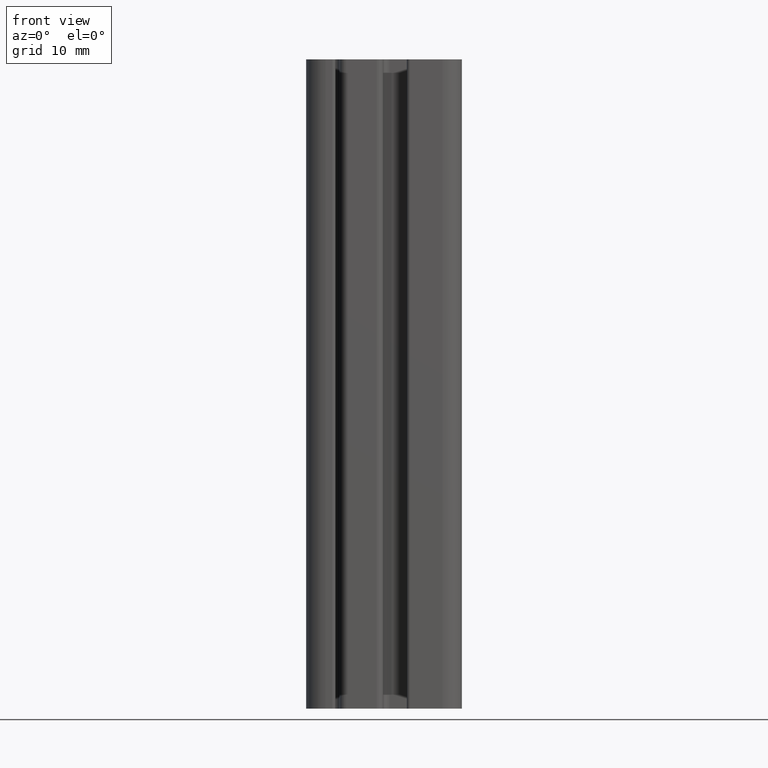
[diagram: clean part render]
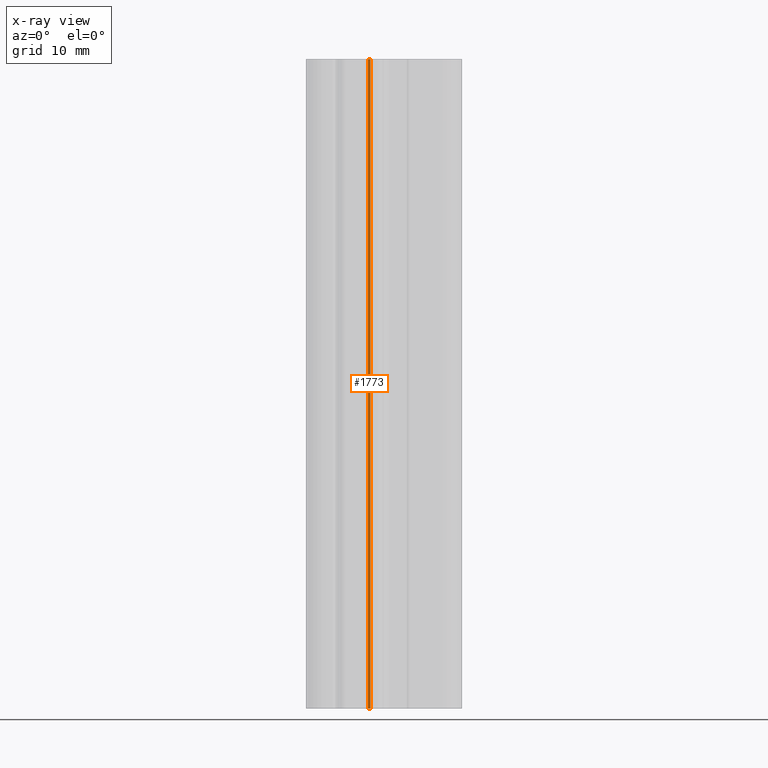
[diagram: x-ray — body ghosted, one internal face saturated and labeled with its STEP entity id]
A machine part, front view, then the same camera in x-ray: the body is ghosted and one INTERNAL B-rep face — a face not visible from any outside direction — is saturated and labeled: STEP entity #1773.
In plain terms, the highlighted cylindrical surface (edge-blend (fillet) strip) has radius 0.5001 mm, axis along (0, 0, 1).
Its self-contained STEP definition (entity closure, byte-faithful):
#65=FACE_OUTER_BOUND('',#159,.T.);
#159=EDGE_LOOP('',(#1175,#1176,#1177,#1178));
#255=LINE('',#2619,#439);
#256=LINE('',#2622,#440);
#439=VECTOR('',#2061,100.);
#440=VECTOR('',#2064,100.);
#623=CIRCLE('',#1870,0.50008889988562);
#624=CIRCLE('',#1871,0.50008889988562);
#715=VERTEX_POINT('',#2615);
#716=VERTEX_POINT('',#2616);
#717=VERTEX_POINT('',#2618);
#718=VERTEX_POINT('',#2620);
#899=EDGE_CURVE('',#715,#716,#623,.T.);
#900=EDGE_CURVE('',#715,#717,#255,.T.);
#901=EDGE_CURVE('',#718,#717,#624,.T.);
#902=EDGE_CURVE('',#716,#718,#256,.T.);
#1175=ORIENTED_EDGE('',*,*,#899,.F.);
#1176=ORIENTED_EDGE('',*,*,#900,.T.);
#1177=ORIENTED_EDGE('',*,*,#901,.F.);
#1178=ORIENTED_EDGE('',*,*,#902,.F.);
#1727=CYLINDRICAL_SURFACE('',#1869,0.50008889988562);
#1773=ADVANCED_FACE('',(#65),#1727,.T.);
#1869=AXIS2_PLACEMENT_3D('',#2614,#2057,#2058);
#1870=AXIS2_PLACEMENT_3D('',#2617,#2059,#2060);
#1871=AXIS2_PLACEMENT_3D('',#2621,#2062,#2063);
#2057=DIRECTION('center_axis',(0.,0.,1.));
#2058=DIRECTION('ref_axis',(-0.866029488167256,-0.499992925574713,0.));
#2059=DIRECTION('center_axis',(0.,0.,-1.));
#2060=DIRECTION('ref_axis',(-0.866029488167256,-0.499992925574713,0.));
#2061=DIRECTION('',(0.,0.,1.));
#2062=DIRECTION('center_axis',(0.,0.,1.));
#2063=DIRECTION('ref_axis',(-0.866029488167256,-0.499992925574713,0.));
#2064=DIRECTION('',(0.,0.,1.));
#2614=CARTESIAN_POINT('Origin',(-1.95645937532739,9.09996870857448,0.));
#2615=CARTESIAN_POINT('',(-1.95645937532739,8.59987980868886,0.));
#2616=CARTESIAN_POINT('',(-2.38955110933346,8.84992779647323,0.));
#2617=CARTESIAN_POINT('Origin',(-1.95645937532739,9.09996870857448,0.));
#2618=CARTESIAN_POINT('',(-1.95645937532739,8.59987980868886,100.));
#2619=CARTESIAN_POINT('',(-1.95645937532739,8.59987980868886,0.));
#2620=CARTESIAN_POINT('',(-2.38955110933346,8.84992779647323,100.));
#2621=CARTESIAN_POINT('Origin',(-1.95645937532739,9.09996870857448,100.));
#2622=CARTESIAN_POINT('',(-2.38955110933346,8.84992779647323,0.));